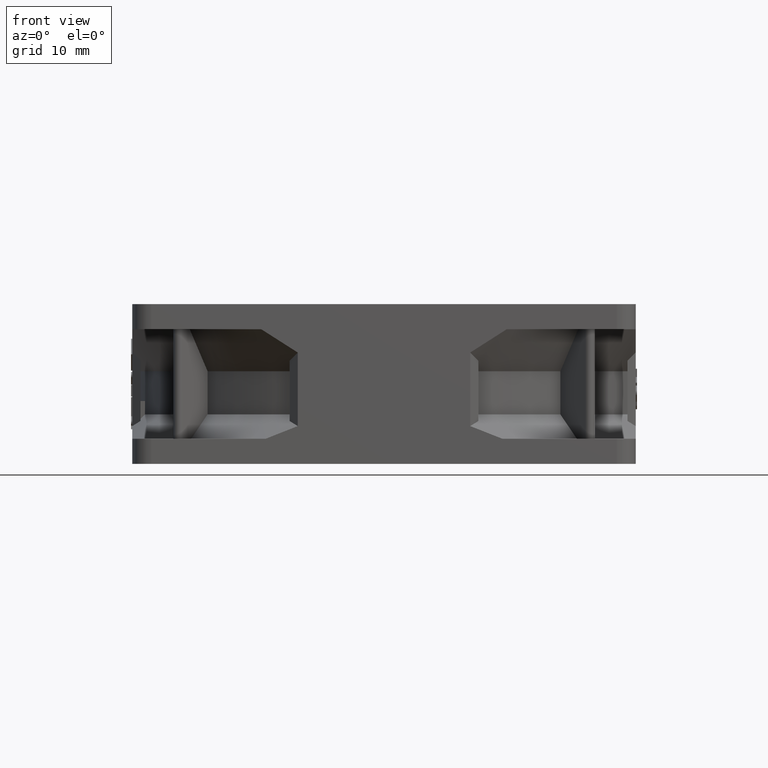
[diagram: clean part render]
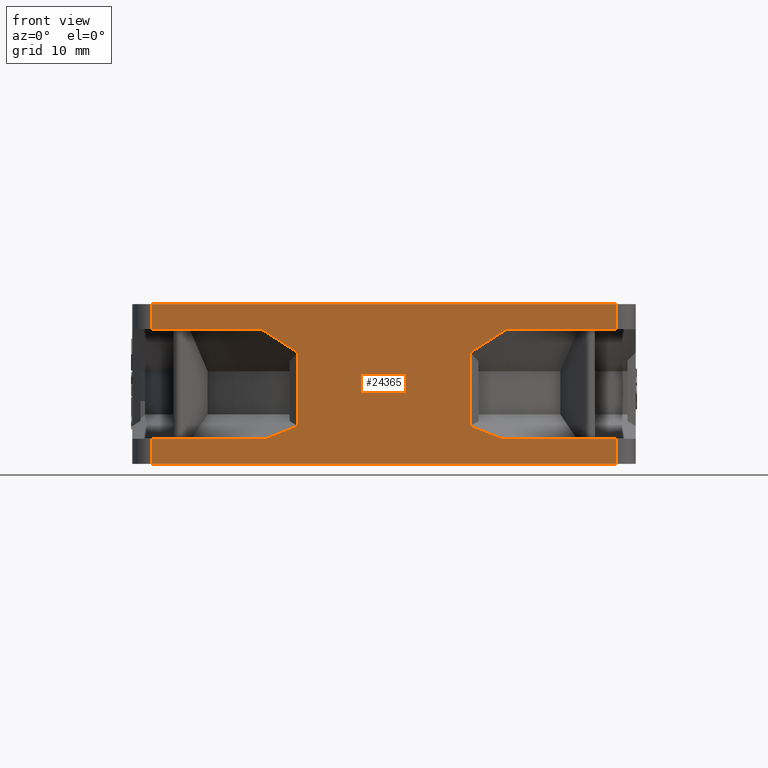
[diagram: same view with one face highlighted and labeled with its STEP entity id]
A machine part, front view. The second image highlights one B-rep face of the part: STEP entity #24365.
In plain terms, the highlighted planar face has unit normal (0, -1, 0).
Its self-contained STEP definition (entity closure, byte-faithful):
#4687=DIRECTION('',(1.E0,0.E0,0.E0));
#4688=VECTOR('',#4687,1.819468160333E1);
#4689=CARTESIAN_POINT('',(1.880531839667E1,-4.E1,-2.14E1));
#4690=LINE('',#4689,#4688);
#4733=DIRECTION('',(-1.E0,0.E0,0.E0));
#4734=VECTOR('',#4733,1.75E1);
#4735=CARTESIAN_POINT('',(3.7E1,-4.E1,-4.E0));
#4736=LINE('',#4735,#4734);
#4799=CARTESIAN_POINT('',(1.37E1,-4.E1,-1.938608118441E1));
#4800=CARTESIAN_POINT('',(1.426026889739E1,-4.E1,-1.957660830283E1));
#4801=CARTESIAN_POINT('',(1.538537149930E1,-4.E1,-1.998009727277E1));
#4802=CARTESIAN_POINT('',(1.708701440157E1,-4.E1,-2.065196066347E1));
#4803=CARTESIAN_POINT('',(1.823090360013E1,-4.E1,-2.114351033894E1));
#4804=CARTESIAN_POINT('',(1.880531839667E1,-4.E1,-2.14E1));
#4817=DIRECTION('',(0.E0,0.E0,-1.E0));
#4818=VECTOR('',#4817,1.168666195889E1);
#4819=CARTESIAN_POINT('',(1.37E1,-4.E1,-7.699419225517E0));
#4820=LINE('',#4819,#4818);
#4826=CARTESIAN_POINT('',(1.37E1,-4.E1,-7.699419225517E0));
#4828=DIRECTION('',(1.E0,0.E0,0.E0));
#4829=VECTOR('',#4828,7.4E1);
#4830=CARTESIAN_POINT('',(-3.7E1,-4.E1,-2.54E1));
#4831=LINE('',#4830,#4829);
#4851=CARTESIAN_POINT('',(-1.37E1,-4.E1,-7.699419225518E0));
#4852=CARTESIAN_POINT('',(-1.432793825119E1,-4.E1,-7.360197280678E0));
#4853=CARTESIAN_POINT('',(-1.559509033523E1,-4.E1,-6.634404218979E0));
#4854=CARTESIAN_POINT('',(-1.752760152174E1,-4.E1,-5.401765843515E0));
#4855=CARTESIAN_POINT('',(-1.883868133443E1,-4.E1,-4.483145478934E0));
#4856=CARTESIAN_POINT('',(-1.95E1,-4.E1,-4.E0));
#4873=CARTESIAN_POINT('',(-1.880531839667E1,-4.E1,-2.14E1));
#4874=CARTESIAN_POINT('',(-1.823048318127E1,-4.E1,-2.114332261208E1));
#4875=CARTESIAN_POINT('',(-1.708601960612E1,-4.E1,-2.065154944222E1));
#4876=CARTESIAN_POINT('',(-1.538421355067E1,-4.E1,-1.997967202554E1));
#4877=CARTESIAN_POINT('',(-1.425976771376E1,-4.E1,-1.957643786847E1));
#4878=CARTESIAN_POINT('',(-1.37E1,-4.E1,-1.938608118441E1));
#4897=CARTESIAN_POINT('',(-1.37E1,-4.E1,-1.938608118441E1));
#4903=CARTESIAN_POINT('',(-1.37E1,-4.E1,-7.699419225518E0));
#4910=DIRECTION('',(0.E0,0.E0,1.E0));
#4911=VECTOR('',#4910,1.168666195889E1);
#4912=CARTESIAN_POINT('',(-1.37E1,-4.E1,-1.938608118441E1));
#4913=LINE('',#4912,#4911);
#4942=DIRECTION('',(1.E0,0.E0,0.E0));
#4943=VECTOR('',#4942,1.819468160333E1);
#4944=CARTESIAN_POINT('',(-3.7E1,-4.E1,-2.14E1));
#4945=LINE('',#4944,#4943);
#4980=DIRECTION('',(-1.E0,0.E0,0.E0));
#4981=VECTOR('',#4980,1.75E1);
#4982=CARTESIAN_POINT('',(-1.95E1,-4.E1,-4.E0));
#4983=LINE('',#4982,#4981);
#5022=DIRECTION('',(0.E0,0.E0,1.E0));
#5023=VECTOR('',#5022,4.E0);
#5024=CARTESIAN_POINT('',(-3.7E1,-4.E1,-4.E0));
#5025=LINE('',#5024,#5023);
#5062=DIRECTION('',(1.E0,0.E0,0.E0));
#5063=VECTOR('',#5062,7.4E1);
#5064=CARTESIAN_POINT('',(-3.7E1,-4.E1,0.E0));
#5065=LINE('',#5064,#5063);
#5417=DIRECTION('',(0.E0,0.E0,-1.E0));
#5418=VECTOR('',#5417,4.E0);
#5419=CARTESIAN_POINT('',(3.7E1,-4.E1,0.E0));
#5420=LINE('',#5419,#5418);
#5473=DIRECTION('',(0.E0,0.E0,1.E0));
#5474=VECTOR('',#5473,4.E0);
#5475=CARTESIAN_POINT('',(-3.7E1,-4.E1,-2.54E1));
#5476=LINE('',#5475,#5474);
#5496=CARTESIAN_POINT('',(1.95E1,-4.E1,-4.E0));
#5497=CARTESIAN_POINT('',(1.883766581208E1,-4.E1,-4.483887398164E0));
#5498=CARTESIAN_POINT('',(1.752487613873E1,-4.E1,-5.403096338934E0));
#5499=CARTESIAN_POINT('',(1.558858814719E1,-4.E1,-6.637938035866E0));
#5500=CARTESIAN_POINT('',(1.432512717137E1,-4.E1,-7.361715869425E0));
#5501=CARTESIAN_POINT('',(1.37E1,-4.E1,-7.699419225517E0));
#5527=DIRECTION('',(0.E0,0.E0,-1.E0));
#5528=VECTOR('',#5527,4.E0);
#5529=CARTESIAN_POINT('',(3.7E1,-4.E1,-2.14E1));
#5530=LINE('',#5529,#5528);
#12249=CARTESIAN_POINT('',(-1.880531839667E1,-4.E1,-2.14E1));
#12251=VERTEX_POINT('',#12249);
#12275=VERTEX_POINT('',#4897);
#12287=VERTEX_POINT('',#4903);
#12294=CARTESIAN_POINT('',(-1.95E1,-4.E1,-4.E0));
#12295=VERTEX_POINT('',#12294);
#12564=CARTESIAN_POINT('',(1.95E1,-4.E1,-4.E0));
#12565=VERTEX_POINT('',#12564);
#12574=VERTEX_POINT('',#4826);
#12576=VERTEX_POINT('',#4799);
#12577=VERTEX_POINT('',#4804);
#12617=CARTESIAN_POINT('',(-3.7E1,-4.E1,-4.E0));
#12618=VERTEX_POINT('',#12617);
#12619=CARTESIAN_POINT('',(-3.7E1,-4.E1,0.E0));
#12620=VERTEX_POINT('',#12619);
#12641=CARTESIAN_POINT('',(-3.7E1,-4.E1,-2.54E1));
#12642=VERTEX_POINT('',#12641);
#12643=CARTESIAN_POINT('',(-3.7E1,-4.E1,-2.14E1));
#12644=VERTEX_POINT('',#12643);
#12654=CARTESIAN_POINT('',(3.7E1,-4.E1,-4.E0));
#12656=VERTEX_POINT('',#12654);
#12657=CARTESIAN_POINT('',(3.7E1,-4.E1,-2.14E1));
#12658=CARTESIAN_POINT('',(3.7E1,-4.E1,-2.54E1));
#12659=VERTEX_POINT('',#12657);
#12660=VERTEX_POINT('',#12658);
#12673=CARTESIAN_POINT('',(3.7E1,-4.E1,0.E0));
#12674=VERTEX_POINT('',#12673);
#24331=CARTESIAN_POINT('',(-1.321414213562E2,-4.E1,0.E0));
#24332=DIRECTION('',(0.E0,-1.E0,0.E0));
#24333=DIRECTION('',(1.E0,0.E0,0.E0));
#24334=AXIS2_PLACEMENT_3D('',#24331,#24332,#24333);
#24335=PLANE('',#24334);
#24337=ORIENTED_EDGE('',*,*,#24336,.T.);
#24339=ORIENTED_EDGE('',*,*,#24338,.T.);
#24341=ORIENTED_EDGE('',*,*,#24340,.T.);
#24343=ORIENTED_EDGE('',*,*,#24342,.T.);
#24345=ORIENTED_EDGE('',*,*,#24344,.T.);
#24346=ORIENTED_EDGE('',*,*,#24245,.T.);
#24348=ORIENTED_EDGE('',*,*,#24347,.T.);
#24349=ORIENTED_EDGE('',*,*,#24323,.T.);
#24350=ORIENTED_EDGE('',*,*,#24295,.T.);
#24351=ORIENTED_EDGE('',*,*,#24199,.T.);
#24353=ORIENTED_EDGE('',*,*,#24352,.T.);
#24354=ORIENTED_EDGE('',*,*,#15446,.F.);
#24356=ORIENTED_EDGE('',*,*,#24355,.T.);
#24358=ORIENTED_EDGE('',*,*,#24357,.T.);
#24360=ORIENTED_EDGE('',*,*,#24359,.T.);
#24362=ORIENTED_EDGE('',*,*,#24361,.T.);
#24363=EDGE_LOOP('',(#24337,#24339,#24341,#24343,#24345,#24346,#24348,#24349,
#24350,#24351,#24353,#24354,#24356,#24358,#24360,#24362));
#24364=FACE_OUTER_BOUND('',#24363,.F.);
#24365=ADVANCED_FACE('',(#24364),#24335,.T.);
#4805=B_SPLINE_CURVE_WITH_KNOTS('',3,(#4799,#4800,#4801,#4802,#4803,#4804),
.UNSPECIFIED.,.F.,.F.,(4,1,1,4),(0.E0,3.333333333333E-1,6.666666666667E-1,1.E0),
.UNSPECIFIED.);
#4857=B_SPLINE_CURVE_WITH_KNOTS('',3,(#4851,#4852,#4853,#4854,#4855,#4856),
.UNSPECIFIED.,.F.,.F.,(4,1,1,4),(0.E0,3.333333333333E-1,6.666666666667E-1,1.E0),
.UNSPECIFIED.);
#4879=B_SPLINE_CURVE_WITH_KNOTS('',3,(#4873,#4874,#4875,#4876,#4877,#4878),
.UNSPECIFIED.,.F.,.F.,(4,1,1,4),(0.E0,3.333333333333E-1,6.666666666667E-1,1.E0),
.UNSPECIFIED.);
#5502=B_SPLINE_CURVE_WITH_KNOTS('',3,(#5496,#5497,#5498,#5499,#5500,#5501),
.UNSPECIFIED.,.F.,.F.,(4,1,1,4),(0.E0,3.333333333333E-1,6.666666666667E-1,1.E0),
.UNSPECIFIED.);
#15446=EDGE_CURVE('',#12642,#12660,#4831,.T.);
#24199=EDGE_CURVE('',#12577,#12659,#4690,.T.);
#24245=EDGE_CURVE('',#12656,#12565,#4736,.T.);
#24295=EDGE_CURVE('',#12576,#12577,#4805,.T.);
#24323=EDGE_CURVE('',#12574,#12576,#4820,.T.);
#24336=EDGE_CURVE('',#12287,#12295,#4857,.T.);
#24338=EDGE_CURVE('',#12295,#12618,#4983,.T.);
#24340=EDGE_CURVE('',#12618,#12620,#5025,.T.);
#24342=EDGE_CURVE('',#12620,#12674,#5065,.T.);
#24344=EDGE_CURVE('',#12674,#12656,#5420,.T.);
#24347=EDGE_CURVE('',#12565,#12574,#5502,.T.);
#24352=EDGE_CURVE('',#12659,#12660,#5530,.T.);
#24355=EDGE_CURVE('',#12642,#12644,#5476,.T.);
#24357=EDGE_CURVE('',#12644,#12251,#4945,.T.);
#24359=EDGE_CURVE('',#12251,#12275,#4879,.T.);
#24361=EDGE_CURVE('',#12275,#12287,#4913,.T.);